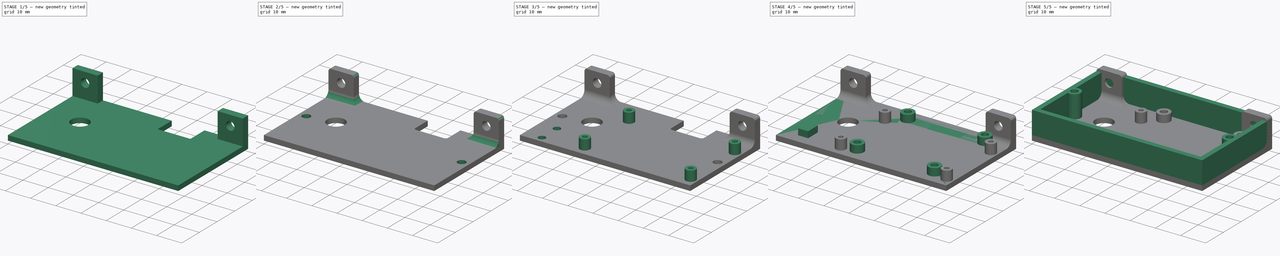
[diagram: build sequence overview — one tinted view per stage of 5, left to right]
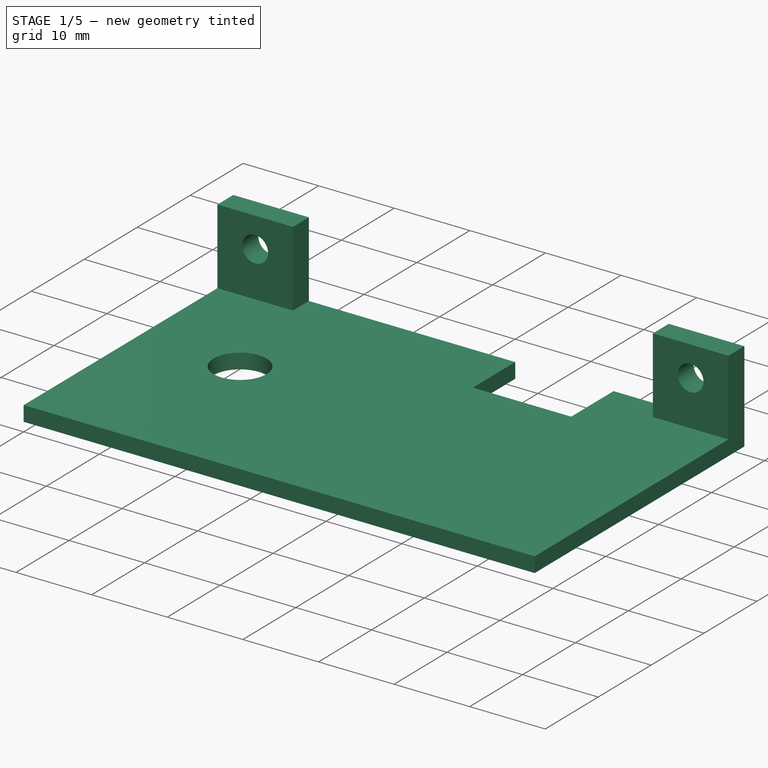
[diagram: stage 1 of 5 — iso view after this stage's code; geometry added in this stage tinted green]
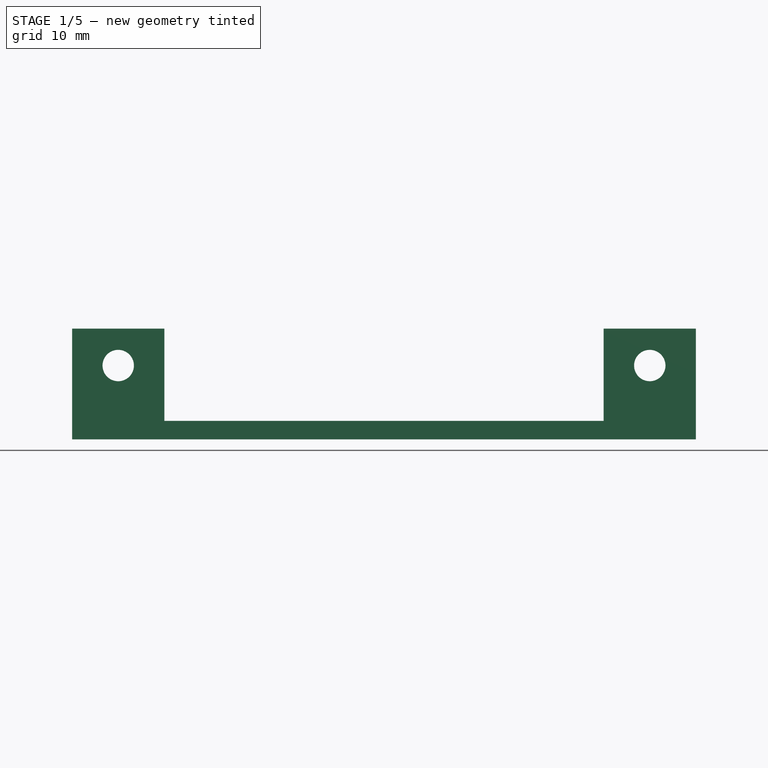
[diagram: stage 1 of 5 — front view after this stage's code; geometry added in this stage tinted green]
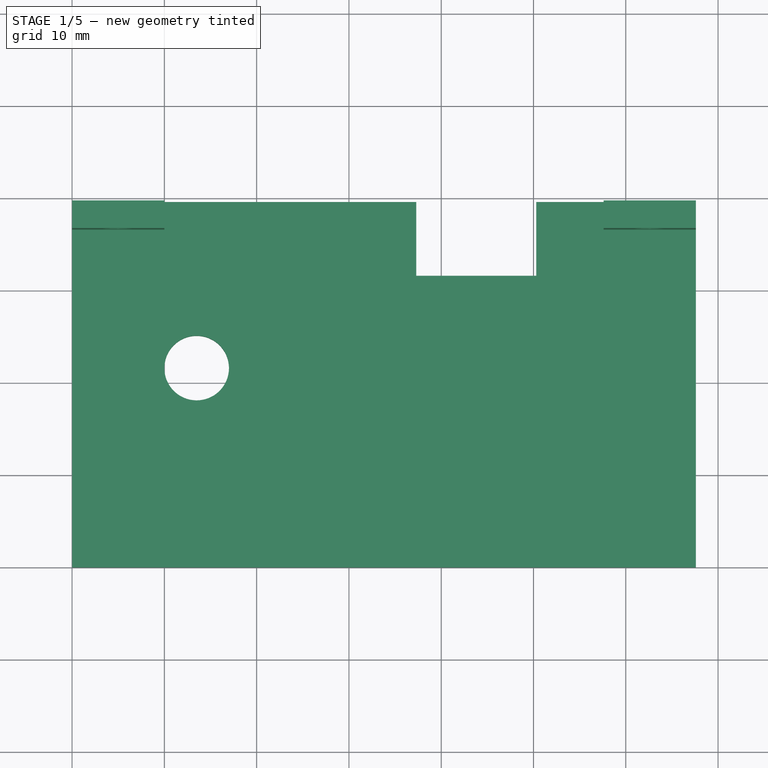
[diagram: stage 1 of 5 — top view after this stage's code; geometry added in this stage tinted green]
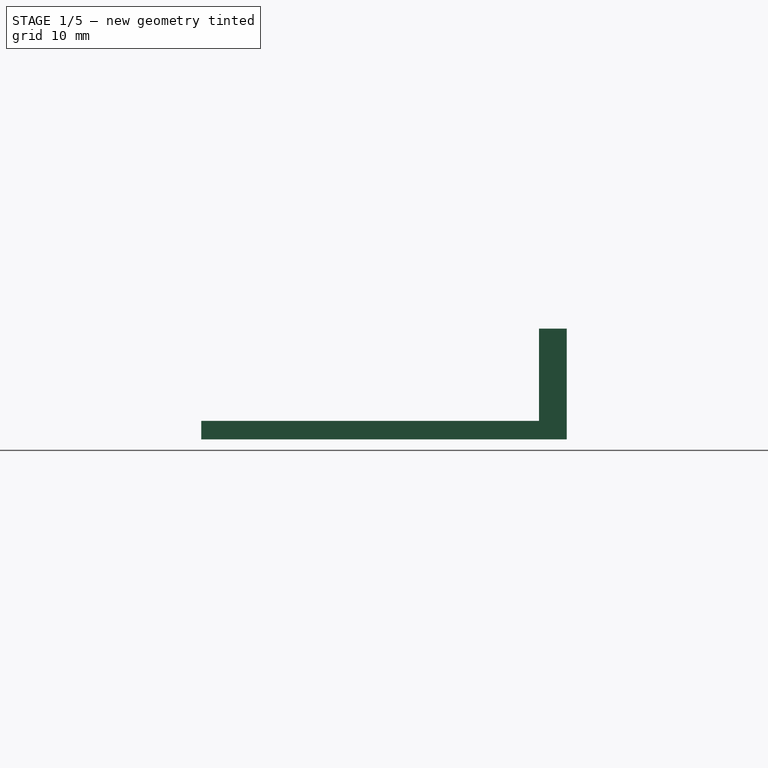
[diagram: stage 1 of 5 — right view after this stage's code; geometry added in this stage tinted green]
FCSTD DOCUMENT  (FreeCAD 0.19R23578 (Git))
Label: display
License: All rights reserved
LicenseURL: http://en.wikipedia.org/wiki/All_rights_reserved
objects: Sketcher::SketchObject×16, PartDesign::Pad×8, PartDesign::Pocket×6, PartDesign::LinearPattern×6, PartDesign::Fillet×4, PartDesign::MultiTransform×2, PartDesign::Hole×2, PartDesign::Body×2
note: 66 computed .brp shape members not serialized (recipe doc carries the construction recipe); baked Part::Feature solids carry a one-line shape summary decoded from their .brp

FEATURE [Sketcher::SketchObject] Sketch006
  MapMode = 5
  Support = -> [XY_Plane001]
  sketch-geometry (4):
    g0: LineSegment StartX=0 StartY=39.6 StartZ=0 EndX=67.6 EndY=39.6 EndZ=0
    g1: LineSegment StartX=67.6 StartY=39.6 StartZ=0 EndX=67.6 EndY=0 EndZ=0
    g2: LineSegment StartX=67.6 StartY=0 StartZ=0 EndX=0 EndY=0 EndZ=0
    g3: LineSegment StartX=0 StartY=0 StartZ=0 EndX=0 EndY=39.6 EndZ=0
  constraints (11):
    c: Coincident(g0,g1)
    c: Coincident(g1,g2)
    c: Coincident(g2,g3)
    c: Coincident(g3,g0)
    c: Horizontal(g0)
    c: Horizontal(g2)
    c: Vertical(g1)
    c: Vertical(g3)
    c: DistanceY(g1,g1) = 39.6
    c: DistanceX(g2,g2) = 67.6
    c: Coincident(g2,g-1)
FEATURE [PartDesign::Pad] Pad003
  Direction = (1,1,1)
  Length = 2
  Length2 = 100
  Profile = -> Sketch006
  Type = 0
FEATURE [Sketcher::SketchObject] Sketch008
  MapMode = 5
  Placement = pos=(0,0,2) rot=(0,0,1;0rad)
  Support = -> [Pad003]
  sketch-geometry (1):
    g0: Circle CenterX=13.5 CenterY=21.6 CenterZ=0 NormalX=0 NormalY=0 NormalZ=1 AngleXU=0 Radius=3.5
  constraints (3):
    c: DistanceX(g-2,g0) = 13.5
    c: DistanceY(g-1,g0) = 21.6
    c: Diameter(g0) = 7
FEATURE [PartDesign::Pocket] Pocket002
  BaseFeature = -> Pad003
  Length = 10
  Length2 = 100
  Profile = -> Sketch008
  Type = 0
FEATURE [Sketcher::SketchObject] Sketch009
  MapMode = 5
  Placement = pos=(0,0,2) rot=(0,0,1;0rad)
  Support = -> [Pocket002]
  sketch-geometry (8):
    g0: LineSegment StartX=0 StartY=39.6 StartZ=0 EndX=10 EndY=39.6 EndZ=0
    g1: LineSegment StartX=10 StartY=39.6 StartZ=0 EndX=10 EndY=36.6 EndZ=0
    g2: LineSegment StartX=10 StartY=36.6 StartZ=0 EndX=0 EndY=36.6 EndZ=0
    g3: LineSegment StartX=0 StartY=36.6 StartZ=0 EndX=0 EndY=39.6 EndZ=0
    g4: LineSegment StartX=57.6 StartY=39.6 StartZ=0 EndX=67.6 EndY=39.6 EndZ=0
    g5: LineSegment StartX=67.6 StartY=39.6 StartZ=0 EndX=67.6 EndY=36.6 EndZ=0
    g6: LineSegment StartX=67.6 StartY=36.6 StartZ=0 EndX=57.6 EndY=36.6 EndZ=0
    g7: LineSegment StartX=57.6 StartY=36.6 StartZ=0 EndX=57.6 EndY=39.6 EndZ=0
  constraints (24):
    c: Coincident(g0,g1)
    c: Coincident(g1,g2)
    c: Coincident(g2,g3)
    c: Coincident(g3,g0)
    c: Horizontal(g0)
    c: Horizontal(g2)
    c: Vertical(g1)
    c: Vertical(g3)
    c: DistanceX(g0,g0) = 10
    c: DistanceY(g1,g1) = 3
    c: PointOnObject(g2,g-2)
    c: DistanceY(g-1,g0) = 39.6
    c: Coincident(g4,g5)
    c: Coincident(g5,g6)
    c: Coincident(g6,g7)
    c: Coincident(g7,g4)
    c: Horizontal(g4)
    c: Horizontal(g6)
    c: Vertical(g5)
    c: Equal(g4,g0)
    c: Equal(g5,g1)
    c: DistanceY(g-1,g4) = 39.6
    c: DistanceX(g-2,g4) = 67.6
    c: Vertical(g7)
FEATURE [PartDesign::Pad] Pad005
  BaseFeature = -> Pocket002
  Direction = (1,1,1)
  Length = 10
  Length2 = 100
  Profile = -> Sketch009
  Type = 0
FEATURE [Sketcher::SketchObject] Sketch011
  MapMode = 5
  Placement = pos=(0,39.6,0) rot=(0,0.707107,0.707107;3.14159rad)
  Support = -> [Pad005]
  expr: Constraints[5] = -67.59999999999999mm + 5mm
  sketch-geometry (2):
    g0: Circle CenterX=-5 CenterY=8 CenterZ=0 NormalX=0 NormalY=0 NormalZ=1 AngleXU=0 Radius=1.7
    g1: Circle CenterX=-62.6 CenterY=8 CenterZ=0 NormalX=0 NormalY=0 NormalZ=1 AngleXU=0 Radius=1.7
  constraints (6):
    c: Diameter(g0) = 3.4
    c: DistanceY(g-1,g0) = 8
    c: DistanceX(g-2,g0) = -5
    c: Equal(g1,g0)
    c: DistanceY(g-1,g1) = 8
    c: DistanceX(g-2,g1) = -62.6
FEATURE [PartDesign::Hole] Hole
  BaseFeature = -> Pad005
  Depth = 3
  DepthType = 0
  Diameter = 3.4
  DrillPoint = 0
  DrillPointAngle = 118
  HoleCutCountersinkAngle = 90
  HoleCutDepth = 0
  HoleCutDiameter = 0
  HoleCutType = 0
  ModelActualThread = false
  Profile = -> Sketch011
  Tapered = false
  TaperedAngle = 90
  ThreadAngle = 0
  ThreadClass = 0
  ThreadCutOffInner = 0
  ThreadCutOffOuter = 0
  ThreadDirection = 0
  ThreadFit = 0
  ThreadPitch = 0
  ThreadSize = 9
  ThreadType = 1
  Threaded = false
FEATURE [Sketcher::SketchObject] Sketch012
  MapMode = 5
  Placement = pos=(0,0,2) rot=(0,0,1;0rad)
  Support = -> [Hole]
  expr: Constraints[11] = 20mm + 8.5mm + 30.6mm / 2 - 13mm / 2
  sketch-geometry (4):
    g0: LineSegment StartX=37.3 StartY=39.6 StartZ=0 EndX=50.3 EndY=39.6 EndZ=0
    g1: LineSegment StartX=50.3 StartY=39.6 StartZ=0 EndX=50.3 EndY=31.6 EndZ=0
    g2: LineSegment StartX=50.3 StartY=31.6 StartZ=0 EndX=37.3 EndY=31.6 EndZ=0
    g3: LineSegment StartX=37.3 StartY=31.6 StartZ=0 EndX=37.3 EndY=39.6 EndZ=0
  constraints (12):
    c: Coincident(g0,g1)
    c: Coincident(g1,g2)
    c: Coincident(g2,g3)
    c: Coincident(g3,g0)
    c: Horizontal(g0)
    c: Horizontal(g2)
    c: Vertical(g1)
    c: Vertical(g3)
    c: DistanceX(g0,g0) = 13
    c: DistanceY(g1,g1) = 8
    c: DistanceY(g-1,g0) = 39.6
    c: DistanceX(g-2,g0) = 37.3
FEATURE [PartDesign::Pocket] Pocket003
  BaseFeature = -> Hole
  Length = 5
  Length2 = 100
  Profile = -> Sketch012
  Type = 0
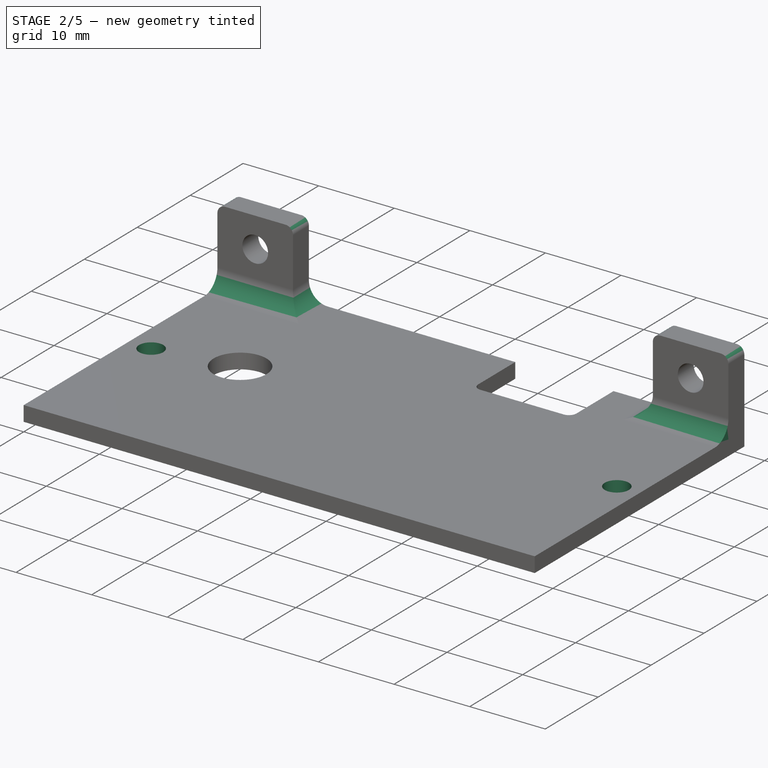
[diagram: stage 2 of 5 — iso view after this stage's code; geometry added in this stage tinted green]
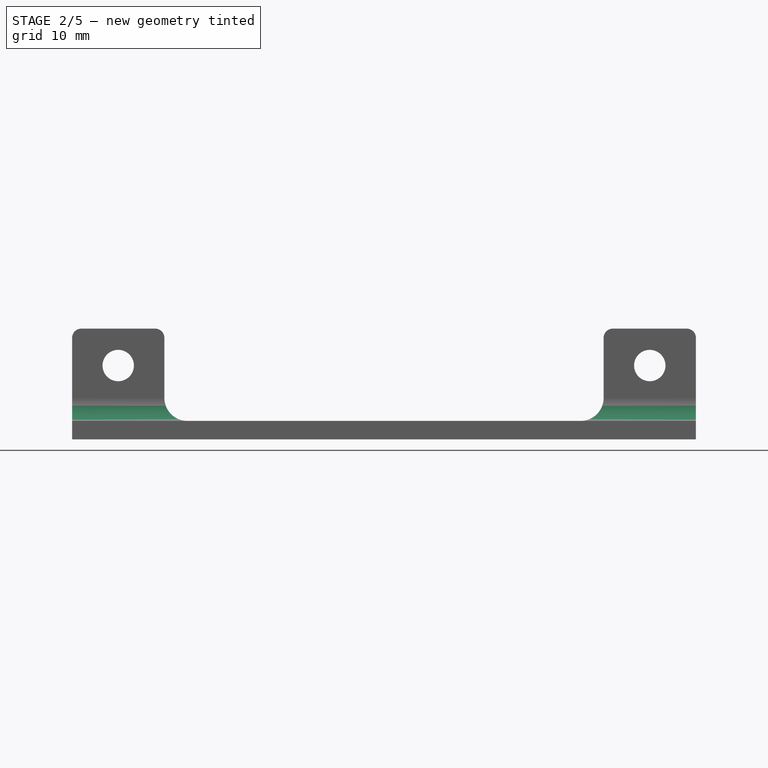
[diagram: stage 2 of 5 — front view after this stage's code; geometry added in this stage tinted green]
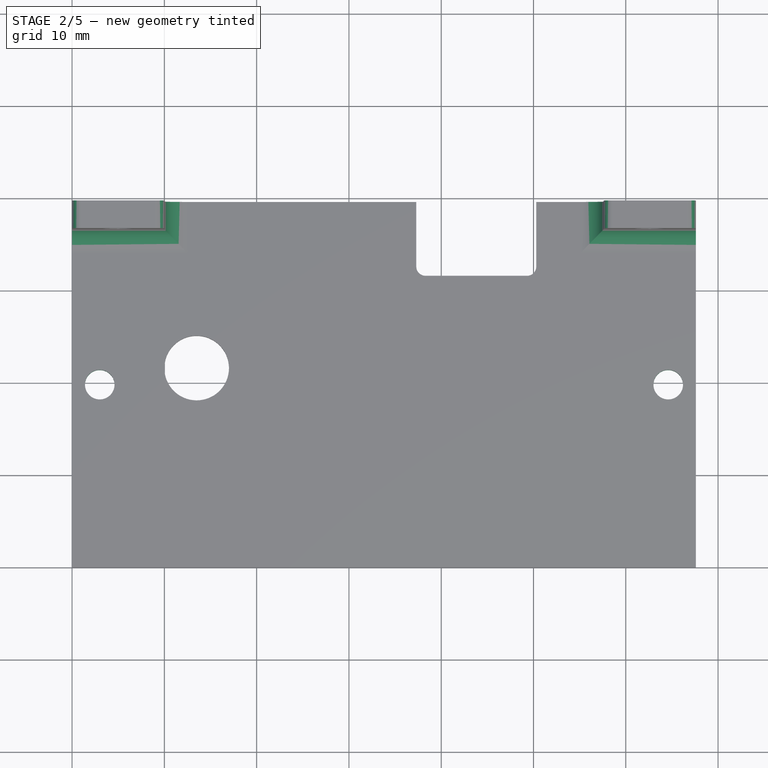
[diagram: stage 2 of 5 — top view after this stage's code; geometry added in this stage tinted green]
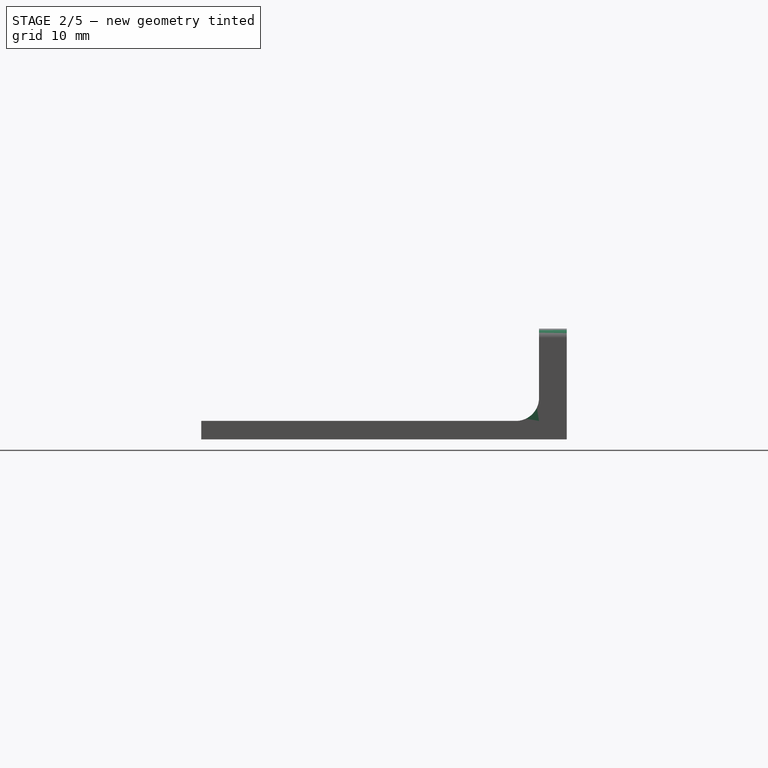
[diagram: stage 2 of 5 — right view after this stage's code; geometry added in this stage tinted green]
FEATURE [PartDesign::Fillet] Fillet001
  Base = -> Pocket003 [Edge17,Edge21,Edge22,Edge16]
  BaseFeature = -> Pocket003
  Radius = 2.5
  SupportTransform = false
FEATURE [PartDesign::Fillet] Fillet002
  Base = -> Fillet001 [Edge49,Edge25]
  BaseFeature = -> Fillet001
  Radius = 1
  SupportTransform = false
FEATURE [PartDesign::Fillet] Fillet003
  Base = -> Fillet002 [Edge63,Edge60,Edge71,Edge73]
  BaseFeature = -> Fillet002
  Radius = 1
  SupportTransform = false
FEATURE [PartDesign::Body] Body  label="Box"
  Group = -> [Sketch,Pad,Sketch001,Pad001,Sketch002,Pocket,MultiTransform,LinearPattern,LinearPattern001,Sketch003,Pad002,Fillet,Sketch013,Pad006,Sketch014,Pocket004,LinearPattern002]
  Origin = -> Origin
  Tip = -> LinearPattern002
FEATURE [Sketcher::SketchObject] Sketch015
  MapMode = 5
  Placement = pos=(0,0,2) rot=(0,0,1;0rad)
  Support = -> [Fillet003]
  expr: Constraints[1] = 39.6 / 2
  sketch-geometry (1):
    g0: Circle CenterX=3 CenterY=19.8 CenterZ=0 NormalX=0 NormalY=0 NormalZ=1 AngleXU=0 Radius=1.6
  constraints (3):
    c: Diameter(g0) = 3.2
    c: DistanceY(g-1,g0) = 19.8
    c: DistanceX(g-2,g0) = 3
FEATURE [PartDesign::Hole] Hole001
  BaseFeature = -> Fillet003
  Depth = 5
  DepthType = 0
  Diameter = 3.2
  DrillPoint = 0
  DrillPointAngle = 118
  HoleCutCountersinkAngle = 90
  HoleCutDepth = 0
  HoleCutDiameter = 0
  HoleCutType = 0
  ModelActualThread = false
  Profile = -> Sketch015
  Tapered = false
  TaperedAngle = 90
  ThreadAngle = 0
  ThreadClass = 0
  ThreadCutOffInner = 0
  ThreadCutOffOuter = 0
  ThreadDirection = 0
  ThreadFit = 1
  ThreadPitch = 0
  ThreadSize = 9
  ThreadType = 1
  Threaded = false
FEATURE [PartDesign::LinearPattern] LinearPattern003
  BaseFeature = -> Hole001
  Direction = -> Sketch015 [H_Axis]
  Length = 61.6
  Occurrences = 2
  Originals = -> [Hole001]
  expr: Length = 67.59999999999999 - 6
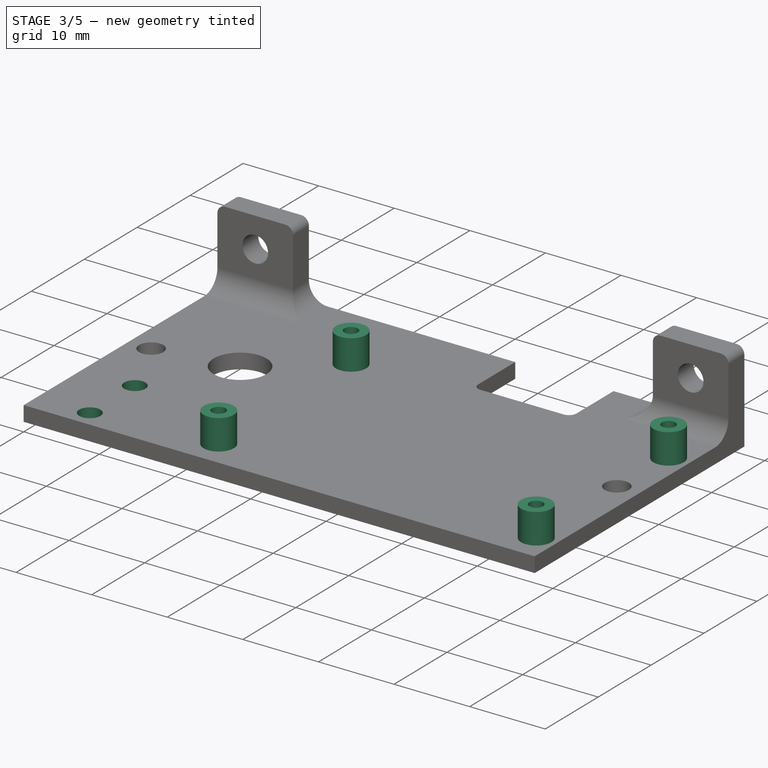
[diagram: stage 3 of 5 — iso view after this stage's code; geometry added in this stage tinted green]
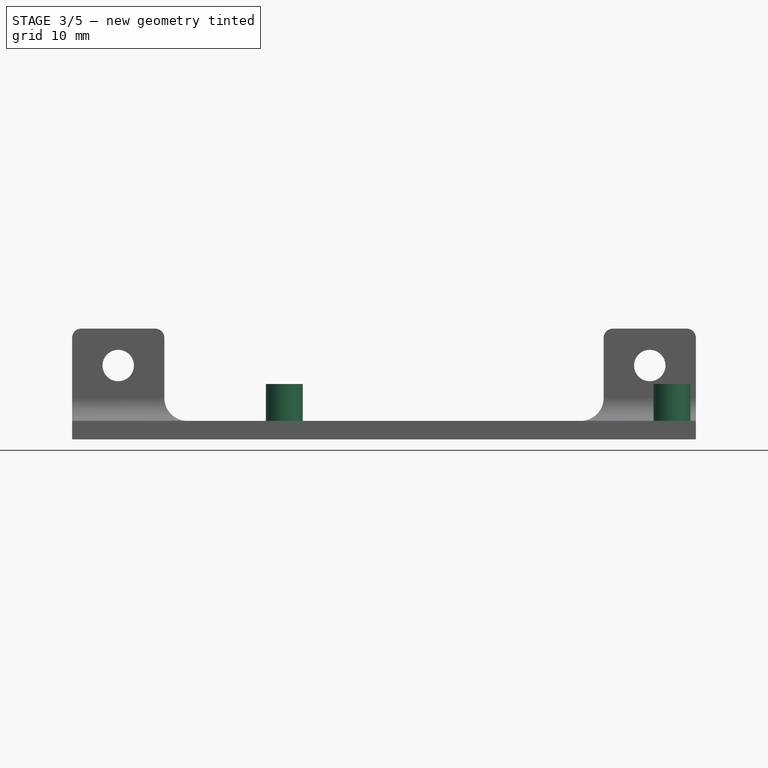
[diagram: stage 3 of 5 — front view after this stage's code; geometry added in this stage tinted green]
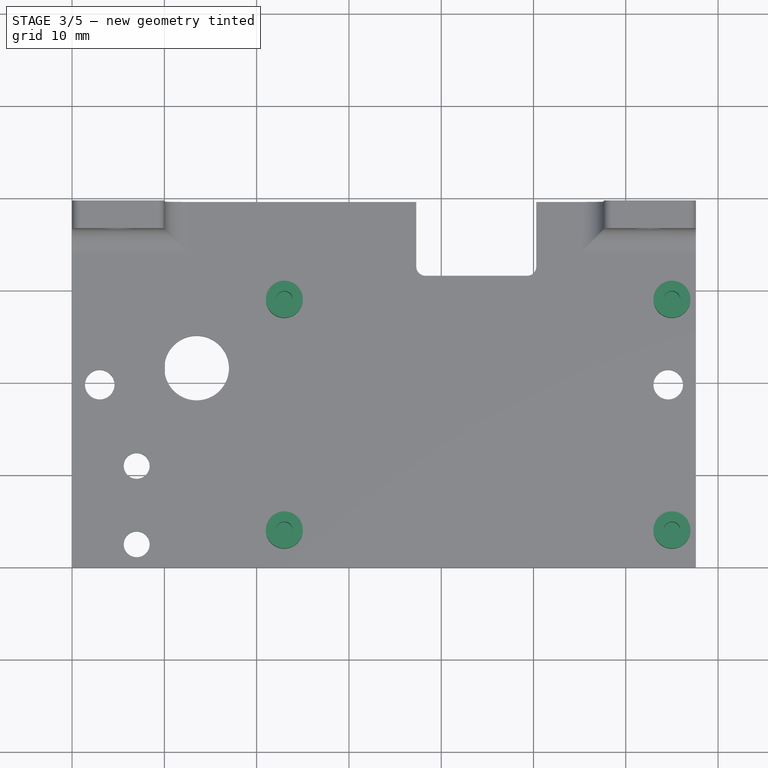
[diagram: stage 3 of 5 — top view after this stage's code; geometry added in this stage tinted green]
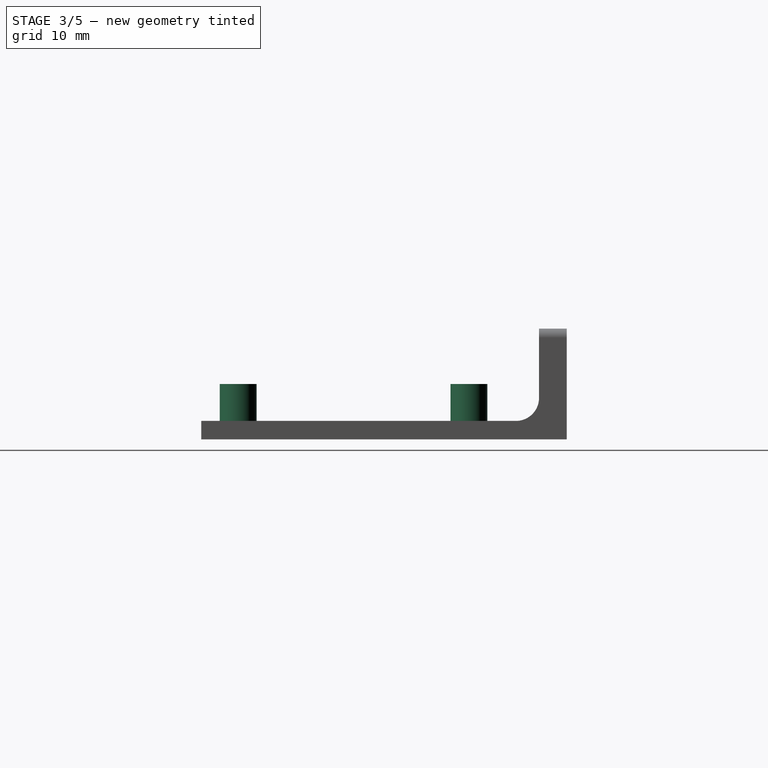
[diagram: stage 3 of 5 — right view after this stage's code; geometry added in this stage tinted green]
FEATURE [Sketcher::SketchObject] Sketch016
  MapMode = 5
  Placement = pos=(0,0,2) rot=(0,0,1;0rad)
  Support = -> [LinearPattern003]
  sketch-geometry (1):
    g0: Circle CenterX=23 CenterY=4 CenterZ=0 NormalX=0 NormalY=0 NormalZ=1 AngleXU=0 Radius=2
  constraints (3):
    c: Diameter(g0) = 4
    c: DistanceY(g-1,g0) = 4
    c: DistanceX(g-2,g0) = 23
FEATURE [PartDesign::Pad] Pad007
  BaseFeature = -> LinearPattern003
  Direction = (1,1,1)
  Length = 4
  Length2 = 100
  Profile = -> Sketch016
  Type = 0
FEATURE [Sketcher::SketchObject] Sketch017
  MapMode = 5
  Placement = pos=(0,0,6) rot=(0,0,1;0rad)
  Support = -> [Pad007]
  sketch-geometry (1):
    g0: Circle CenterX=23 CenterY=4 CenterZ=0 NormalX=0 NormalY=0 NormalZ=1 AngleXU=0 Radius=0.9
  constraints (3):
    c: Diameter(g0) = 1.8
    c: DistanceX(g-2,g0) = 23
    c: DistanceY(g-1,g0) = 4
FEATURE [PartDesign::Pocket] Pocket005
  BaseFeature = -> Pad007
  Length = 5
  Length2 = 100
  Profile = -> Sketch017
  Type = 0
FEATURE [PartDesign::LinearPattern] LinearPattern004
  Direction = -> X_Axis001
  Length = 42
  Occurrences = 2
FEATURE [PartDesign::LinearPattern] LinearPattern005
  Direction = -> Y_Axis001
  Length = 25
  Occurrences = 2
FEATURE [PartDesign::MultiTransform] MultiTransform001
  BaseFeature = -> Pocket005
  Originals = -> [Pad007,Pocket005]
  Transformations = -> [LinearPattern004,LinearPattern005]
FEATURE [Sketcher::SketchObject] Sketch018
  MapMode = 5
  Placement = pos=(0,0,2) rot=(0,0,1;0rad)
  Support = -> [MultiTransform001]
  sketch-geometry (2):
    g0: Circle CenterX=7 CenterY=2.5 CenterZ=0 NormalX=0 NormalY=0 NormalZ=1 AngleXU=0 Radius=1.4
    g1: Circle CenterX=7 CenterY=11 CenterZ=0 NormalX=0 NormalY=0 NormalZ=1 AngleXU=0 Radius=1.4
  constraints (6):
    c: Diameter(g0) = 2.8
    c: Equal(g0,g1)
    c: DistanceX(g-2,g0) = 7
    c: DistanceX(g-2,g1) = 7
    c: Distance(g0,g1) = 8.5
    c: DistanceY(g-1,g0) = 2.5
FEATURE [PartDesign::Pocket] Pocket006
  BaseFeature = -> MultiTransform001
  Length = 5
  Length2 = 100
  Profile = -> Sketch018
  Type = 0
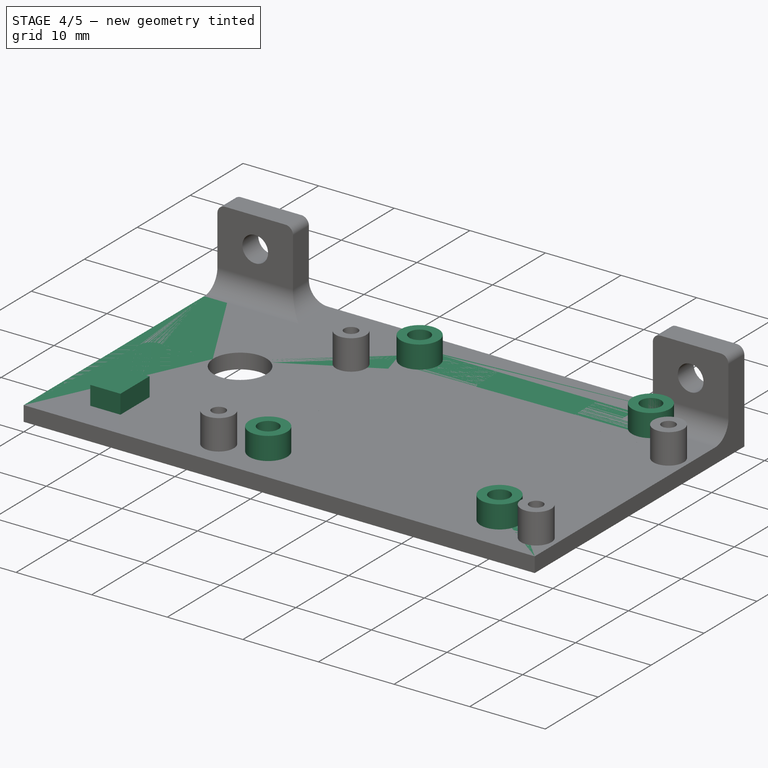
[diagram: stage 4 of 5 — iso view after this stage's code; geometry added in this stage tinted green]
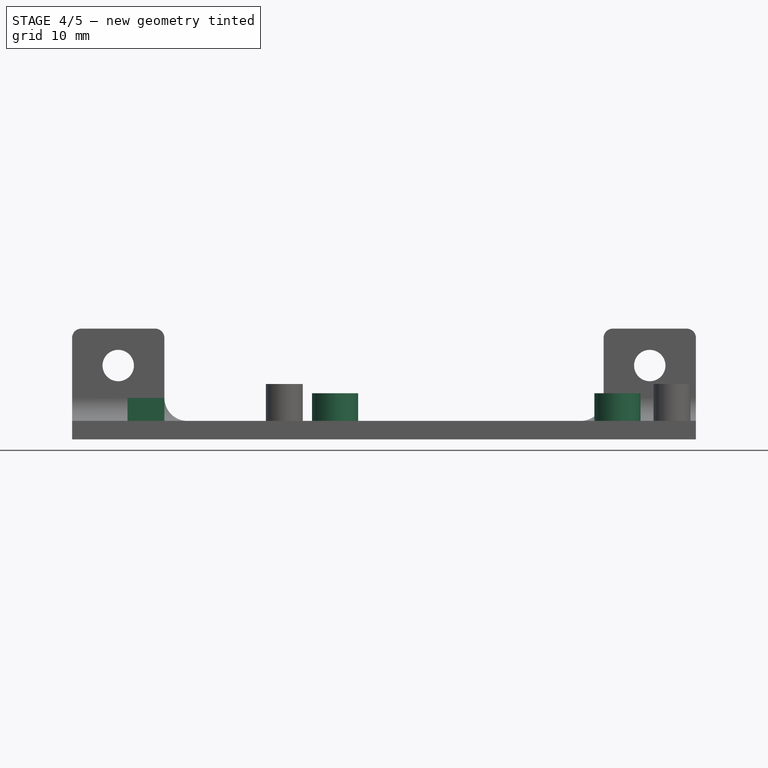
[diagram: stage 4 of 5 — front view after this stage's code; geometry added in this stage tinted green]
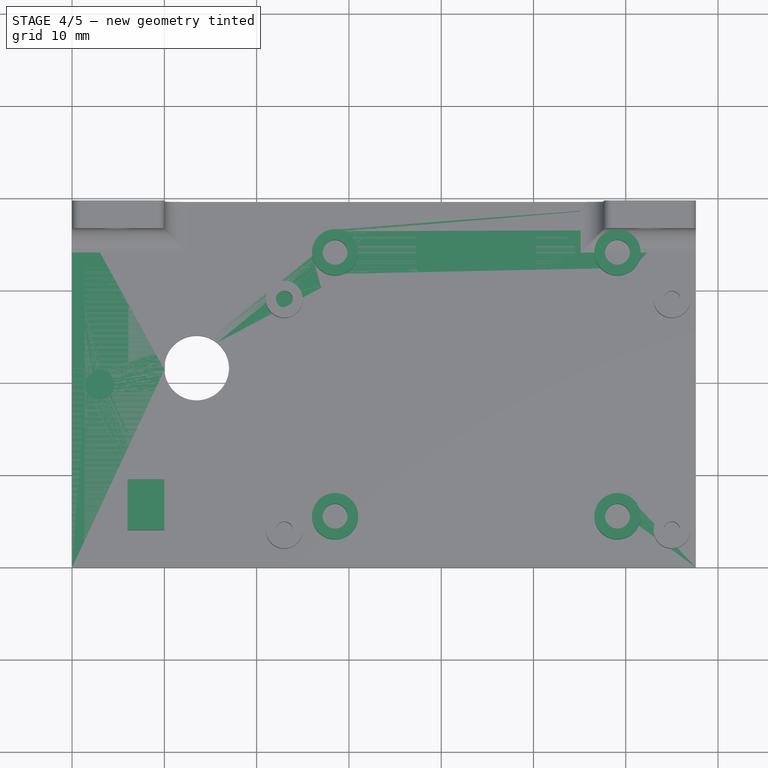
[diagram: stage 4 of 5 — top view after this stage's code; geometry added in this stage tinted green]
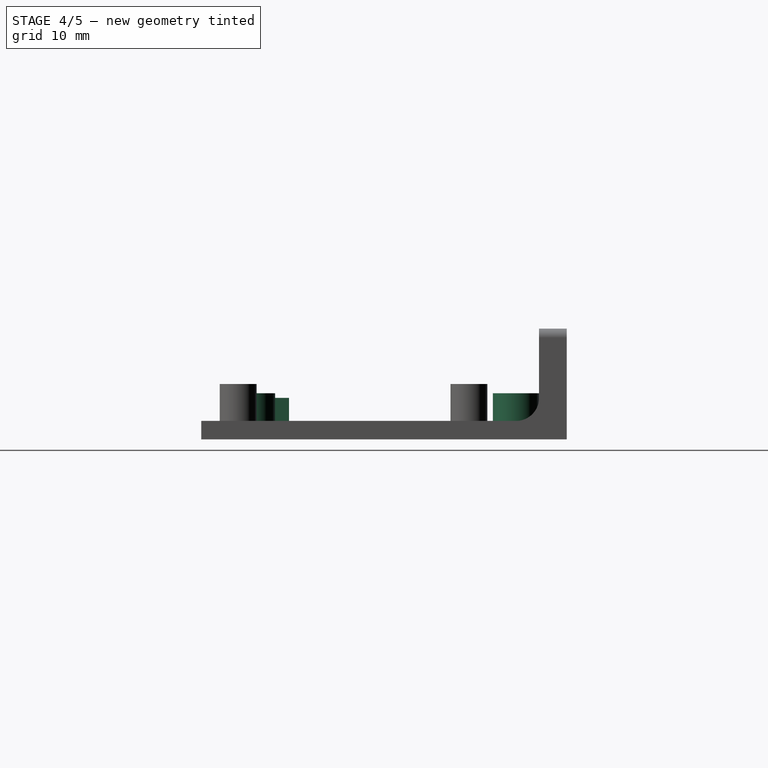
[diagram: stage 4 of 5 — right view after this stage's code; geometry added in this stage tinted green]
FEATURE [Sketcher::SketchObject] Sketch
  MapMode = 5
  Support = -> [XY_Plane]
  expr: Constraints[24] = 12.9mm + 17.4mm / 2
  expr: Constraints[20] = 7mm + 20mm
  expr: Constraints[10] = 35.6mm + 2 * 6mm + 20mm
  sketch-geometry (9):
    g0: LineSegment StartX=0 StartY=0 StartZ=0 EndX=67.6 EndY=0 EndZ=0
    g1: LineSegment StartX=67.6 StartY=0 StartZ=0 EndX=67.6 EndY=39.6 EndZ=0
    g2: LineSegment StartX=67.6 StartY=39.6 StartZ=0 EndX=0 EndY=39.6 EndZ=0
    g3: LineSegment StartX=0 StartY=39.6 StartZ=0 EndX=0 EndY=0 EndZ=0
    g4: LineSegment StartX=27 StartY=12.9 StartZ=0 EndX=60.6 EndY=12.9 EndZ=0
    g5: LineSegment StartX=60.6 StartY=12.9 StartZ=0 EndX=60.6 EndY=30.3 EndZ=0
    g6: LineSegment StartX=60.6 StartY=30.3 StartZ=0 EndX=27 EndY=30.3 EndZ=0
    g7: LineSegment StartX=27 StartY=30.3 StartZ=0 EndX=27 EndY=12.9 EndZ=0
    g8: Circle CenterX=13.5 CenterY=21.6 CenterZ=0 NormalX=0 NormalY=0 NormalZ=1 AngleXU=0 Radius=3.5
  constraints (26):
    c: Coincident(g0,g1)
    c: Coincident(g1,g2)
    c: Coincident(g2,g3)
    c: Coincident(g3,g0)
    c: Horizontal(g0)
    c: Horizontal(g2)
    c: Vertical(g1)
    c: Vertical(g3)
    c: Coincident(g0,g-1)
    c: DistanceY(g1,g1) = 39.6
    c: DistanceX(g2,g2) = 67.6
    c: Coincident(g4,g5)
    c: Coincident(g5,g6)
    c: Coincident(g6,g7)
    c: Coincident(g7,g4)
    c: Horizontal(g4)
    c: Horizontal(g6)
    c: Vertical(g5)
    c: Vertical(g7)
    c: Distance(g0,g4) = 12.9
    c: Distance(g0,g7) = 27
    c: DistanceX(g4,g4) = 33.6
    c: DistanceY(g7,g7) = 17.4
    c: DistanceX(g-2,g8) = 13.5
    c: DistanceY(g-1,g8) = 21.6
    c: Diameter(g8) = 7
FEATURE [PartDesign::Pad] Pad
  Direction = (1,1,1)
  Length = 2
  Length2 = 100
  Profile = -> Sketch
  Type = 0
FEATURE [Sketcher::SketchObject] Sketch001
  MapMode = 5
  Placement = pos=(0,0,2) rot=(0,0,1;0rad)
  Support = -> [Pad]
  expr: Constraints[1] = 8.5mm + 20mm
  sketch-geometry (1):
    g0: Circle CenterX=28.5 CenterY=5.5 CenterZ=0 NormalX=0 NormalY=0 NormalZ=1 AngleXU=0 Radius=2.5
  constraints (3):
    c: DistanceY(g-1,g0) = 5.5
    c: DistanceX(g-2,g0) = 28.5
    c: Diameter(g0) = 5
FEATURE [PartDesign::Pad] Pad001
  BaseFeature = -> Pad
  Direction = (1,1,1)
  Length = 3
  Length2 = 100
  Profile = -> Sketch001
  Type = 0
FEATURE [Sketcher::SketchObject] Sketch002
  MapMode = 5
  Placement = pos=(0,0,5) rot=(0,0,1;0rad)
  Support = -> [Pad001]
  expr: Constraints[1] = 8.5mm + 20mm
  sketch-geometry (1):
    g0: Circle CenterX=28.5 CenterY=5.5 CenterZ=0 NormalX=0 NormalY=0 NormalZ=1 AngleXU=0 Radius=1.35
  constraints (3):
    c: DistanceY(g-1,g0) = 5.5
    c: DistanceX(g-2,g0) = 28.5
    c: Diameter(g0) = 2.7
FEATURE [PartDesign::Pocket] Pocket
  BaseFeature = -> Pad001
  Length = 4
  Length2 = 100
  Profile = -> Sketch002
  Type = 0
FEATURE [PartDesign::LinearPattern] LinearPattern
  Direction = -> X_Axis
  Length = 30.6
  Occurrences = 2
FEATURE [PartDesign::LinearPattern] LinearPattern001
  Direction = -> Y_Axis
  Length = 28.6
  Occurrences = 2
FEATURE [PartDesign::MultiTransform] MultiTransform
  BaseFeature = -> Pocket
  Originals = -> [Pad001,Pocket]
  Transformations = -> [LinearPattern,LinearPattern001]
FEATURE [Sketcher::SketchObject] Sketch019
  MapMode = 5
  Placement = pos=(0,0,2) rot=(0,0,1;0rad)
  Support = -> [Pocket006]
  sketch-geometry (4):
    g0: LineSegment StartX=6 StartY=9.5 StartZ=0 EndX=10 EndY=9.5 EndZ=0
    g1: LineSegment StartX=10 StartY=9.5 StartZ=0 EndX=10 EndY=4 EndZ=0
    g2: LineSegment StartX=10 StartY=4 StartZ=0 EndX=6 EndY=4 EndZ=0
    g3: LineSegment StartX=6 StartY=4 StartZ=0 EndX=6 EndY=9.5 EndZ=0
  constraints (12):
    c: Coincident(g0,g1)
    c: Coincident(g1,g2)
    c: Coincident(g2,g3)
    c: Coincident(g3,g0)
    c: Horizontal(g0)
    c: Horizontal(g2)
    c: Vertical(g1)
    c: Vertical(g3)
    c: Distance(g-1,g3) = 6
    c: DistanceX(g2,g2) = 4
    c: Distance(g-1,g2) = 4
    c: DistanceY(g3,g3) = 5.5
FEATURE [PartDesign::Pad] Pad008
  BaseFeature = -> Pocket006
  Direction = (1,1,1)
  Length = 2.5
  Length2 = 100
  Profile = -> Sketch019
  Type = 0
FEATURE [PartDesign::Body] Body001  label="Cover"
  Group = -> [Sketch006,Pad003,Sketch008,Pocket002,Sketch009,Pad005,Sketch011,Hole,Sketch012,Pocket003,Fillet001,Fillet002,Fillet003,Sketch015,Hole001,LinearPattern003,Sketch016,Pad007,Sketch017,Pocket005,MultiTransform001,LinearPattern004,LinearPattern005,Sketch018,Pocket006,Sketch019,Pad008]
  Origin = -> Origin001
  Placement = pos=(0,0,20) rot=(0,0,1;0rad)
  Tip = -> Pad008
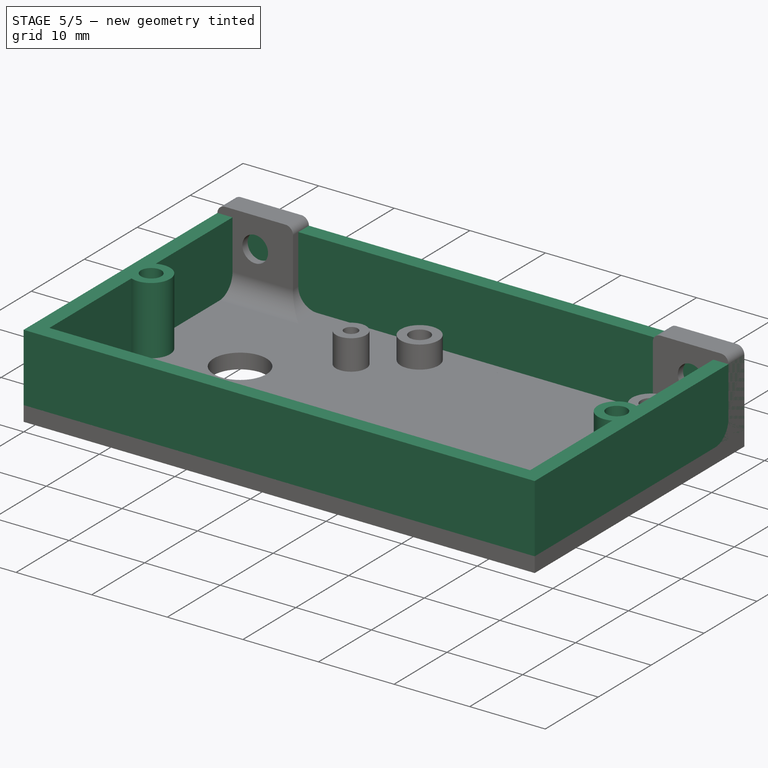
[diagram: stage 5 of 5 — iso view after this stage's code; geometry added in this stage tinted green]
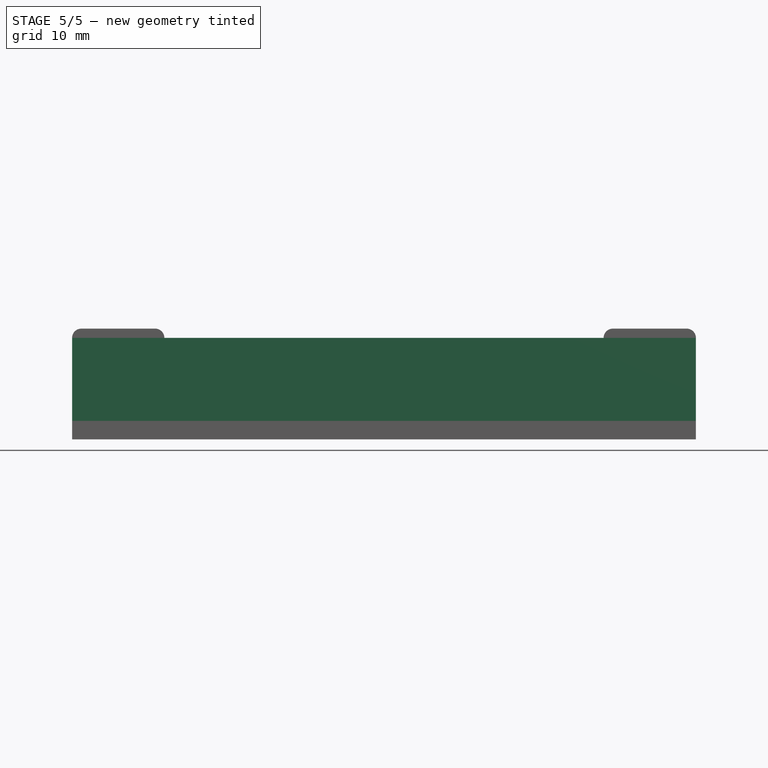
[diagram: stage 5 of 5 — front view after this stage's code; geometry added in this stage tinted green]
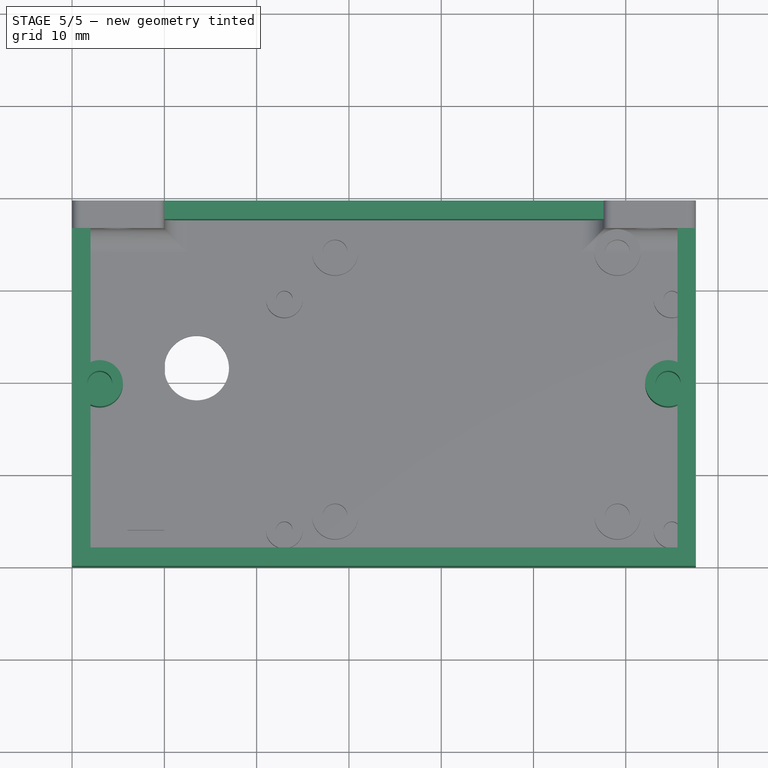
[diagram: stage 5 of 5 — top view after this stage's code; geometry added in this stage tinted green]
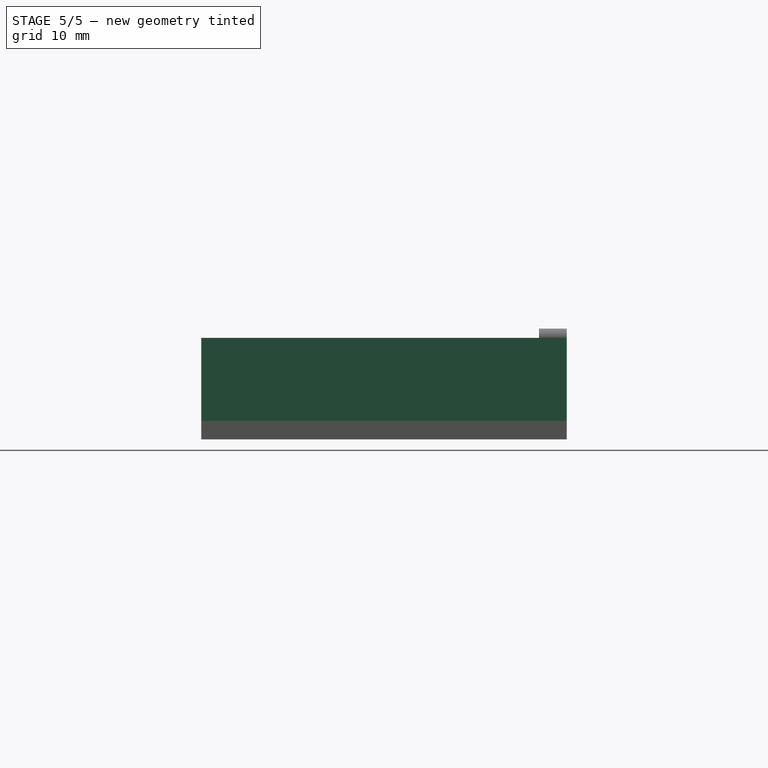
[diagram: stage 5 of 5 — right view after this stage's code; geometry added in this stage tinted green]
FEATURE [Sketcher::SketchObject] Sketch003
  MapMode = 5
  Placement = pos=(0,0,2) rot=(0,0,1;0rad)
  Support = -> [MultiTransform]
  expr: Constraints[20] = 39.6mm - 4mm
  expr: Constraints[19] = 67.59999999999999mm - 4mm
  sketch-geometry (8):
    g0: LineSegment StartX=0 StartY=39.6 StartZ=0 EndX=67.6 EndY=39.6 EndZ=0
    g1: LineSegment StartX=67.6 StartY=39.6 StartZ=0 EndX=67.6 EndY=0 EndZ=0
    g2: LineSegment StartX=67.6 StartY=0 StartZ=0 EndX=0 EndY=0 EndZ=0
    g3: LineSegment StartX=0 StartY=0 StartZ=0 EndX=0 EndY=39.6 EndZ=0
    g4: LineSegment StartX=2 StartY=37.6 StartZ=0 EndX=65.6 EndY=37.6 EndZ=0
    g5: LineSegment StartX=65.6 StartY=37.6 StartZ=0 EndX=65.6 EndY=2 EndZ=0
    g6: LineSegment StartX=65.6 StartY=2 StartZ=0 EndX=2 EndY=2 EndZ=0
    g7: LineSegment StartX=2 StartY=2 StartZ=0 EndX=2 EndY=37.6 EndZ=0
  constraints (23):
    c: Coincident(g0,g1)
    c: Coincident(g1,g2)
    c: Coincident(g2,g3)
    c: Coincident(g3,g0)
    c: Horizontal(g0)
    c: Horizontal(g2)
    c: Vertical(g1)
    c: Vertical(g3)
    c: DistanceX(g0,g0) = 67.6
    c: DistanceY(g3,g3) = 39.6
    c: Coincident(g2,g-1)
    c: Coincident(g4,g5)
    c: Coincident(g5,g6)
    c: Coincident(g6,g7)
    c: Coincident(g7,g4)
    c: Horizontal(g4)
    c: Horizontal(g6)
    c: Vertical(g5)
    c: Vertical(g7)
    c: DistanceX(g4,g4) = 63.6
    c: DistanceY(g7,g7) = 35.6
    c: DistanceX(g-2,g6) = 2
    c: DistanceY(g-1,g6) = 2
FEATURE [PartDesign::Pad] Pad002
  BaseFeature = -> MultiTransform
  Direction = (1,1,1)
  Length = 9
  Length2 = 100
  Profile = -> Sketch003
  Type = 0
FEATURE [PartDesign::Fillet] Fillet
  Base = -> Pad002 [Edge30,Edge28,Edge25,Edge26]
  BaseFeature = -> Pad002
  Radius = 1
  SupportTransform = false
FEATURE [Sketcher::SketchObject] Sketch013
  MapMode = 5
  Placement = pos=(0,0,2) rot=(0,0,1;0rad)
  Support = -> [Fillet]
  expr: Constraints[1] = 39.6mm / 2
  sketch-geometry (1):
    g0: Circle CenterX=3 CenterY=19.8 CenterZ=0 NormalX=0 NormalY=0 NormalZ=1 AngleXU=0 Radius=2.5
  constraints (3):
    c: Diameter(g0) = 5
    c: DistanceY(g-1,g0) = 19.8
    c: DistanceX(g-2,g0) = 3
FEATURE [PartDesign::Pad] Pad006
  BaseFeature = -> Fillet
  Direction = (1,1,1)
  Length = 9
  Length2 = 100
  Profile = -> Sketch013
  Type = 0
FEATURE [Sketcher::SketchObject] Sketch014
  MapMode = 5
  Placement = pos=(0,0,11) rot=(0,0,1;0rad)
  Support = -> [Pad006]
  expr: Constraints[1] = 39.6 / 2
  sketch-geometry (1):
    g0: Circle CenterX=3 CenterY=19.8 CenterZ=0 NormalX=0 NormalY=0 NormalZ=1 AngleXU=0 Radius=1.35
  constraints (3):
    c: Diameter(g0) = 2.7
    c: DistanceY(g-1,g0) = 19.8
    c: DistanceX(g-2,g0) = 3
FEATURE [PartDesign::Pocket] Pocket004
  BaseFeature = -> Pad006
  Length = 8
  Length2 = 100
  Profile = -> Sketch014
  Type = 0
FEATURE [PartDesign::LinearPattern] LinearPattern002
  BaseFeature = -> Pocket004
  Direction = -> Sketch013 [H_Axis]
  Length = 61.6
  Occurrences = 2
  Originals = -> [Pad006,Pocket004]
  expr: Length = 67.59999999999999 - 6
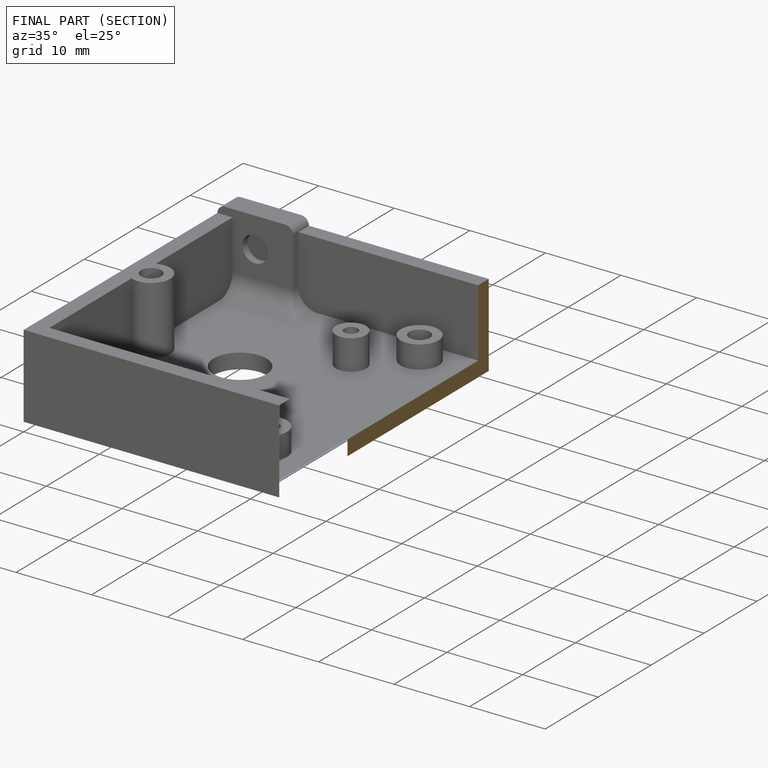
[diagram: finished part — half-section view (interior)]
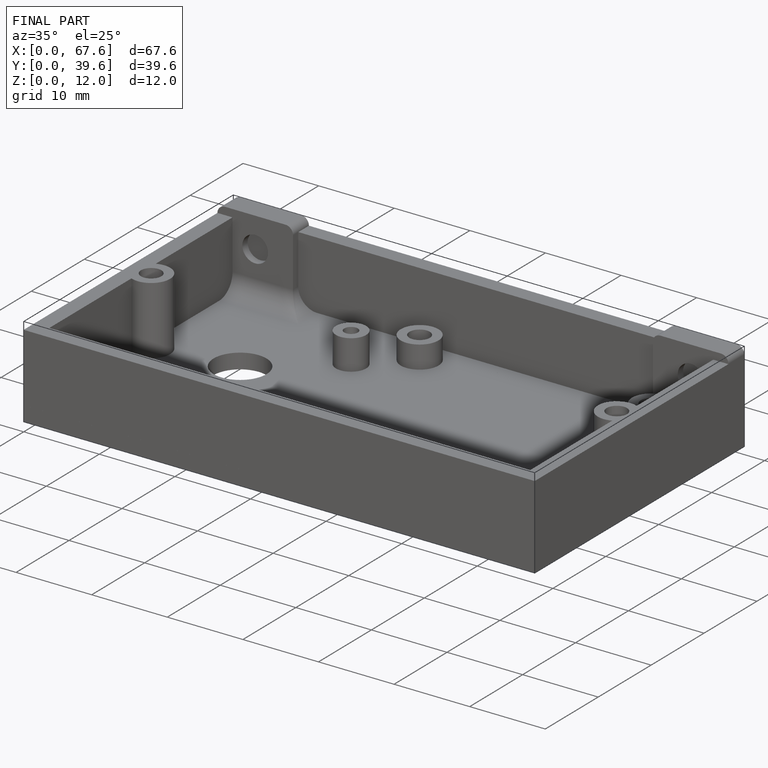
[diagram: finished part — iso view with bounding-box wireframe]
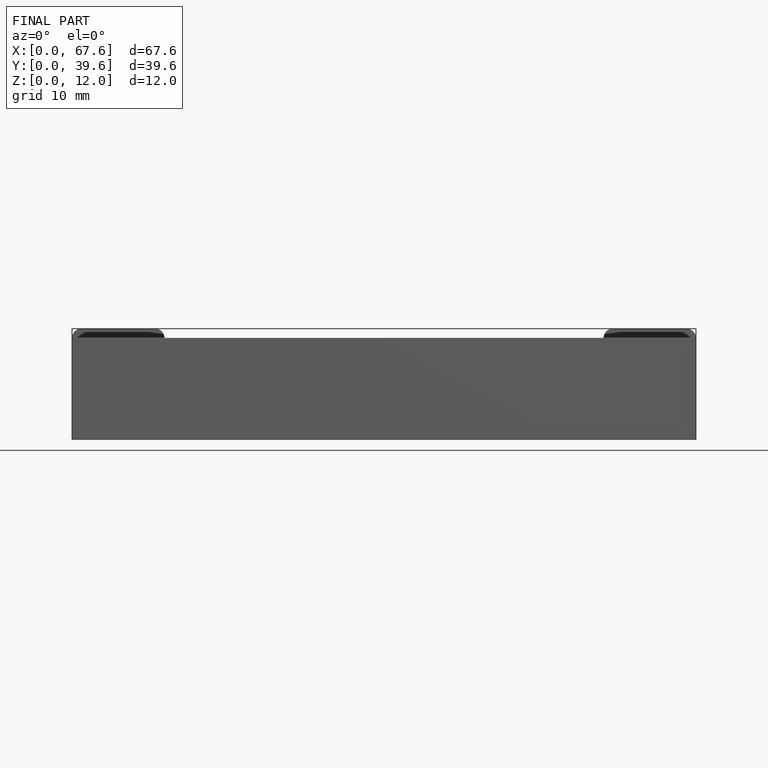
[diagram: finished part — front view with bounding-box wireframe]
